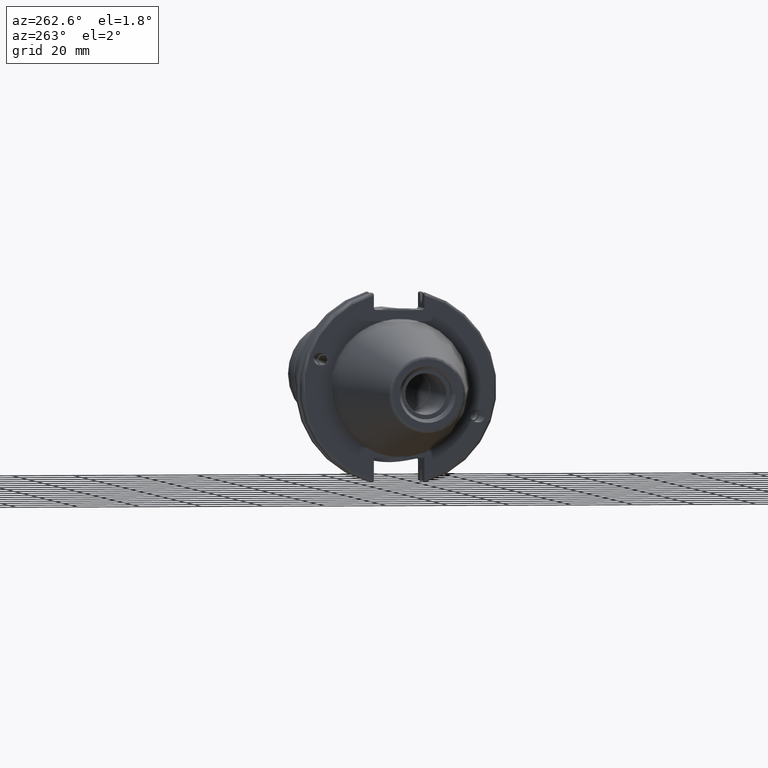
[diagram: clean part render]
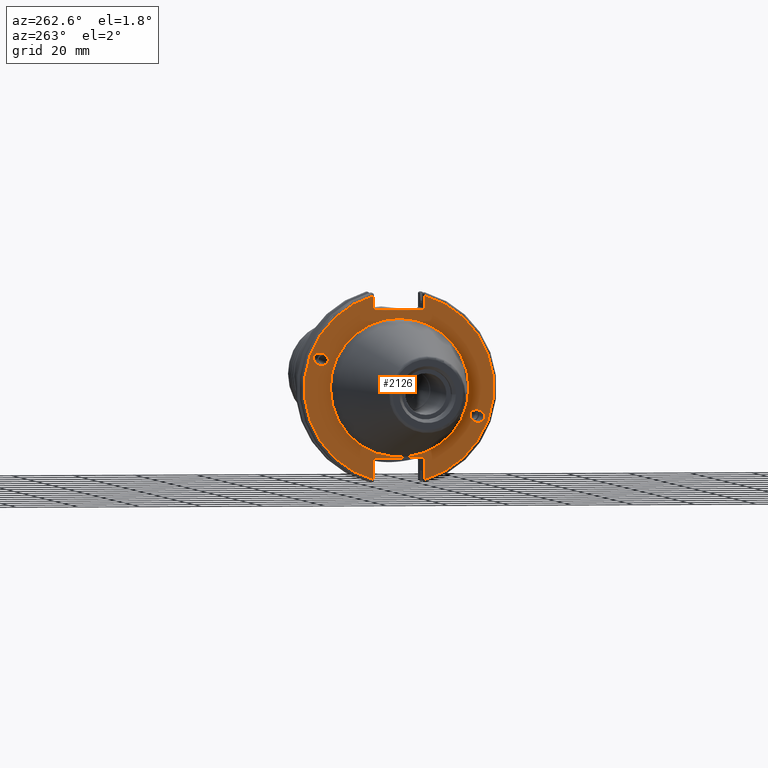
[diagram: same view with one face highlighted and labeled with its STEP entity id]
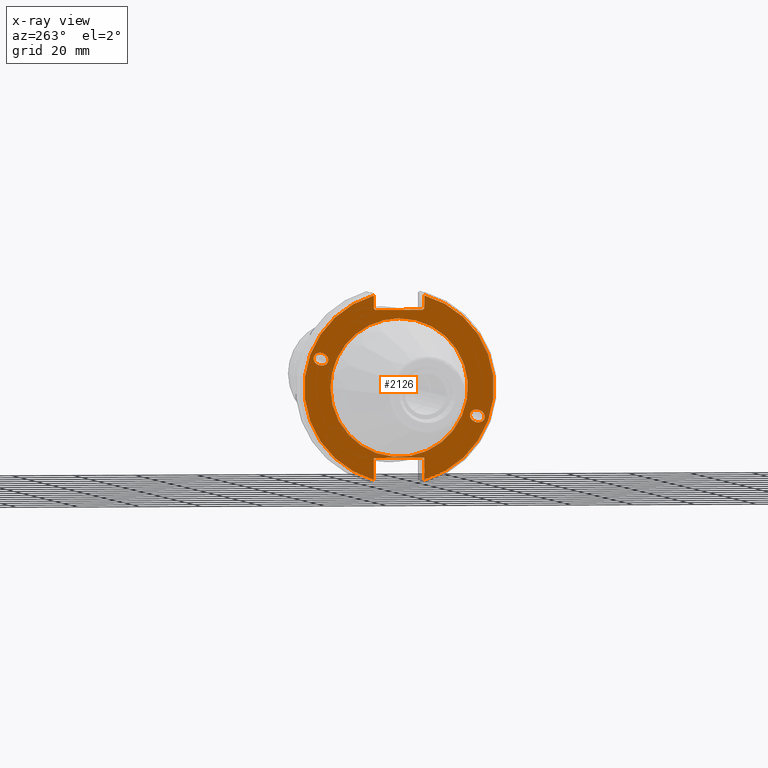
[diagram: x-ray of the same camera — body ghosted, the highlighted face saturated]
A machine part, auxiliary view. The second image highlights one B-rep face of the part: STEP entity #2126.
The next image is the same camera in x-ray: the body ghosted, the highlighted face saturated — about 0% of this face is hidden behind the body in this view.
In plain terms, the highlighted planar face has unit normal (-1, 0, 0).
Its self-contained STEP definition (entity closure, byte-faithful):
#39=ELLIPSE('',#2348,2.44154917752291,2.);
#48=ELLIPSE('',#2396,2.44154917752291,2.);
#62=PLANE('',#2409);
#134=FACE_BOUND('',#353,.T.);
#135=FACE_BOUND('',#354,.T.);
#136=FACE_BOUND('',#355,.T.);
#237=FACE_OUTER_BOUND('',#352,.T.);
#352=EDGE_LOOP('',(#1778,#1779,#1780,#1781,#1782,#1783,#1784,#1785,#1786,
#1787));
#353=EDGE_LOOP('',(#1788));
#354=EDGE_LOOP('',(#1789));
#355=EDGE_LOOP('',(#1790,#1791));
#457=LINE('',#3904,#556);
#458=LINE('',#3908,#557);
#459=LINE('',#3910,#558);
#460=LINE('',#3912,#559);
#461=LINE('',#3914,#560);
#462=LINE('',#3916,#561);
#463=LINE('',#3920,#562);
#464=LINE('',#3921,#563);
#556=VECTOR('',#2986,10.);
#557=VECTOR('',#2989,10.);
#558=VECTOR('',#2990,10.);
#559=VECTOR('',#2991,10.);
#560=VECTOR('',#2992,10.);
#561=VECTOR('',#2993,10.);
#562=VECTOR('',#2996,10.);
#563=VECTOR('',#2997,10.);
#734=CIRCLE('',#2405,22.3);
#735=CIRCLE('',#2406,22.3);
#738=CIRCLE('',#2410,30.75);
#739=CIRCLE('',#2411,30.75);
#899=VERTEX_POINT('',#3683);
#944=VERTEX_POINT('',#3876);
#950=VERTEX_POINT('',#3893);
#951=VERTEX_POINT('',#3895);
#953=VERTEX_POINT('',#3902);
#954=VERTEX_POINT('',#3903);
#955=VERTEX_POINT('',#3905);
#956=VERTEX_POINT('',#3907);
#957=VERTEX_POINT('',#3909);
#958=VERTEX_POINT('',#3911);
#959=VERTEX_POINT('',#3913);
#960=VERTEX_POINT('',#3915);
#961=VERTEX_POINT('',#3917);
#962=VERTEX_POINT('',#3919);
#1179=EDGE_CURVE('',#899,#899,#39,.T.);
#1240=EDGE_CURVE('',#944,#944,#48,.T.);
#1248=EDGE_CURVE('',#950,#951,#734,.T.);
#1249=EDGE_CURVE('',#951,#950,#735,.T.);
#1252=EDGE_CURVE('',#953,#954,#457,.T.);
#1253=EDGE_CURVE('',#955,#954,#738,.T.);
#1254=EDGE_CURVE('',#955,#956,#458,.T.);
#1255=EDGE_CURVE('',#957,#956,#459,.T.);
#1256=EDGE_CURVE('',#957,#958,#460,.T.);
#1257=EDGE_CURVE('',#959,#958,#461,.T.);
#1258=EDGE_CURVE('',#959,#960,#462,.T.);
#1259=EDGE_CURVE('',#961,#960,#739,.T.);
#1260=EDGE_CURVE('',#961,#962,#463,.T.);
#1261=EDGE_CURVE('',#962,#953,#464,.T.);
#1778=ORIENTED_EDGE('',*,*,#1252,.T.);
#1779=ORIENTED_EDGE('',*,*,#1253,.F.);
#1780=ORIENTED_EDGE('',*,*,#1254,.T.);
#1781=ORIENTED_EDGE('',*,*,#1255,.F.);
#1782=ORIENTED_EDGE('',*,*,#1256,.T.);
#1783=ORIENTED_EDGE('',*,*,#1257,.F.);
#1784=ORIENTED_EDGE('',*,*,#1258,.T.);
#1785=ORIENTED_EDGE('',*,*,#1259,.F.);
#1786=ORIENTED_EDGE('',*,*,#1260,.T.);
#1787=ORIENTED_EDGE('',*,*,#1261,.T.);
#1788=ORIENTED_EDGE('',*,*,#1179,.T.);
#1789=ORIENTED_EDGE('',*,*,#1240,.T.);
#1790=ORIENTED_EDGE('',*,*,#1249,.F.);
#1791=ORIENTED_EDGE('',*,*,#1248,.F.);
#2126=ADVANCED_FACE('',(#237,#134,#135,#136),#62,.T.);
#2348=AXIS2_PLACEMENT_3D('',#3685,#2843,#2844);
#2396=AXIS2_PLACEMENT_3D('',#3878,#2956,#2957);
#2405=AXIS2_PLACEMENT_3D('',#3896,#2976,#2977);
#2406=AXIS2_PLACEMENT_3D('',#3897,#2978,#2979);
#2409=AXIS2_PLACEMENT_3D('',#3901,#2984,#2985);
#2410=AXIS2_PLACEMENT_3D('',#3906,#2987,#2988);
#2411=AXIS2_PLACEMENT_3D('',#3918,#2994,#2995);
#2843=DIRECTION('center_axis',(1.,0.,0.));
#2844=DIRECTION('ref_axis',(0.,-0.939692620785912,-0.34202014332566));
#2956=DIRECTION('center_axis',(1.,0.,0.));
#2957=DIRECTION('ref_axis',(0.,0.939692620785912,0.34202014332566));
#2976=DIRECTION('center_axis',(-1.,0.,0.));
#2977=DIRECTION('ref_axis',(0.,-1.,1.83697019872103E-16));
#2978=DIRECTION('center_axis',(-1.,0.,0.));
#2979=DIRECTION('ref_axis',(0.,-1.,1.83697019872103E-16));
#2984=DIRECTION('center_axis',(-1.,0.,0.));
#2985=DIRECTION('ref_axis',(0.,0.,1.));
#2986=DIRECTION('',(0.,0.,-1.));
#2987=DIRECTION('center_axis',(1.,0.,0.));
#2988=DIRECTION('ref_axis',(0.,-1.,1.60812264967664E-16));
#2989=DIRECTION('',(0.,0.,-1.));
#2990=DIRECTION('',(0.,-0.70710678118655,0.707106781186545));
#2991=DIRECTION('',(0.,1.,0.));
#2992=DIRECTION('',(0.,-0.707106781186549,-0.707106781186546));
#2993=DIRECTION('',(0.,0.,1.));
#2994=DIRECTION('center_axis',(1.,0.,0.));
#2995=DIRECTION('ref_axis',(0.,1.,1.60812264967664E-16));
#2996=DIRECTION('',(0.,0.,1.));
#2997=DIRECTION('',(0.,-1.,0.));
#3683=CARTESIAN_POINT('',(3.175,-23.0773950158153,-8.39948487016003));
#3685=CARTESIAN_POINT('Origin',(3.175,-25.3717007612195,-9.23454386979306));
#3876=CARTESIAN_POINT('',(3.175,23.0773950158153,8.39948487016003));
#3878=CARTESIAN_POINT('Origin',(3.175,25.3717007612195,9.23454386979306));
#3893=CARTESIAN_POINT('',(3.175,-2.7309623620986E-15,22.3));
#3895=CARTESIAN_POINT('',(3.175,22.3,-6.8274059052465E-15));
#3896=CARTESIAN_POINT('Origin',(3.175,0.,0.));
#3897=CARTESIAN_POINT('Origin',(3.175,0.,0.));
#3901=CARTESIAN_POINT('Origin',(3.175,31.75,0.));
#3902=CARTESIAN_POINT('',(3.175,-8.19,-22.6));
#3903=CARTESIAN_POINT('',(3.175,-8.19,-29.6392712461019));
#3904=CARTESIAN_POINT('',(3.175,-8.19,-11.3));
#3905=CARTESIAN_POINT('',(3.175,-8.18999999999999,29.6392712461019));
#3906=CARTESIAN_POINT('Origin',(3.175,0.,0.));
#3907=CARTESIAN_POINT('',(3.175,-8.18999999999999,25.5));
#3908=CARTESIAN_POINT('',(3.175,-8.18999999999999,12.5));
#3909=CARTESIAN_POINT('',(3.175,-7.68999999999999,25.));
#3910=CARTESIAN_POINT('',(3.175,8.29500000000007,9.01500000000004));
#3911=CARTESIAN_POINT('',(3.175,7.69,25.));
#3912=CARTESIAN_POINT('',(3.175,15.875,25.));
#3913=CARTESIAN_POINT('',(3.175,8.19,25.5));
#3914=CARTESIAN_POINT('',(3.175,7.58000000000002,24.89));
#3915=CARTESIAN_POINT('',(3.175,8.19,29.6392712461019));
#3916=CARTESIAN_POINT('',(3.175,8.19,12.5));
#3917=CARTESIAN_POINT('',(3.175,8.18999999999999,-29.6392712461019));
#3918=CARTESIAN_POINT('Origin',(3.175,0.,0.));
#3919=CARTESIAN_POINT('',(3.175,8.19,-22.6));
#3920=CARTESIAN_POINT('',(3.175,8.19,-11.3));
#3921=CARTESIAN_POINT('',(3.175,15.875,-22.6));